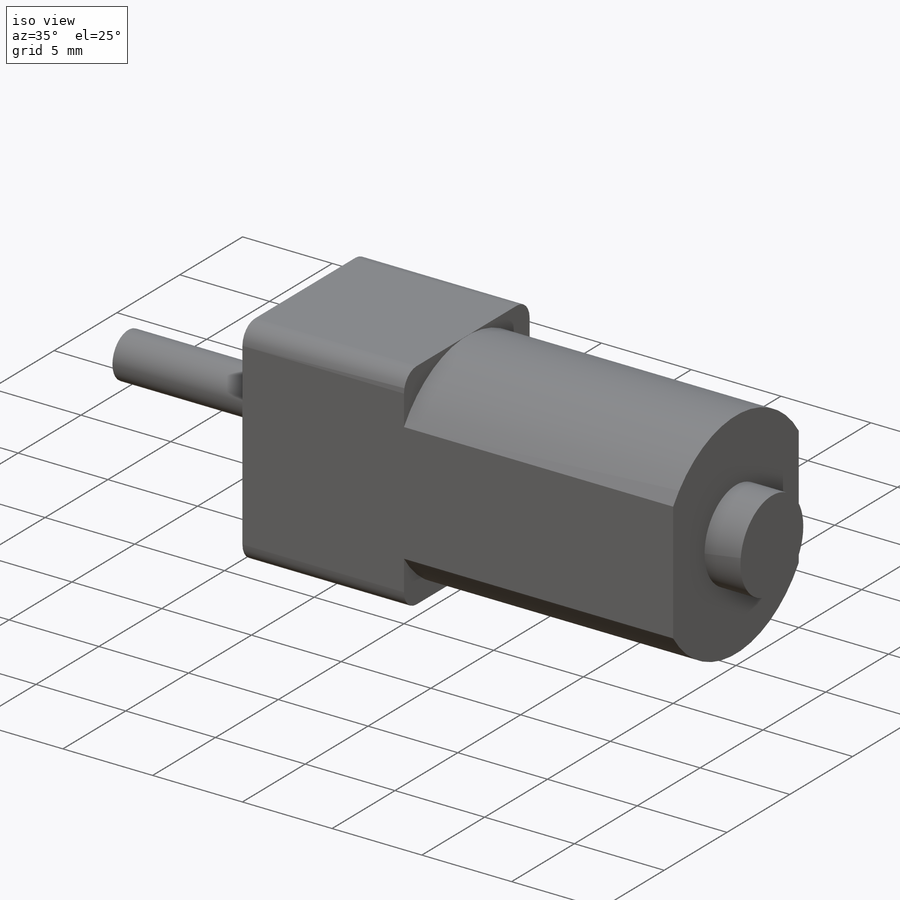
[diagram: iso view]
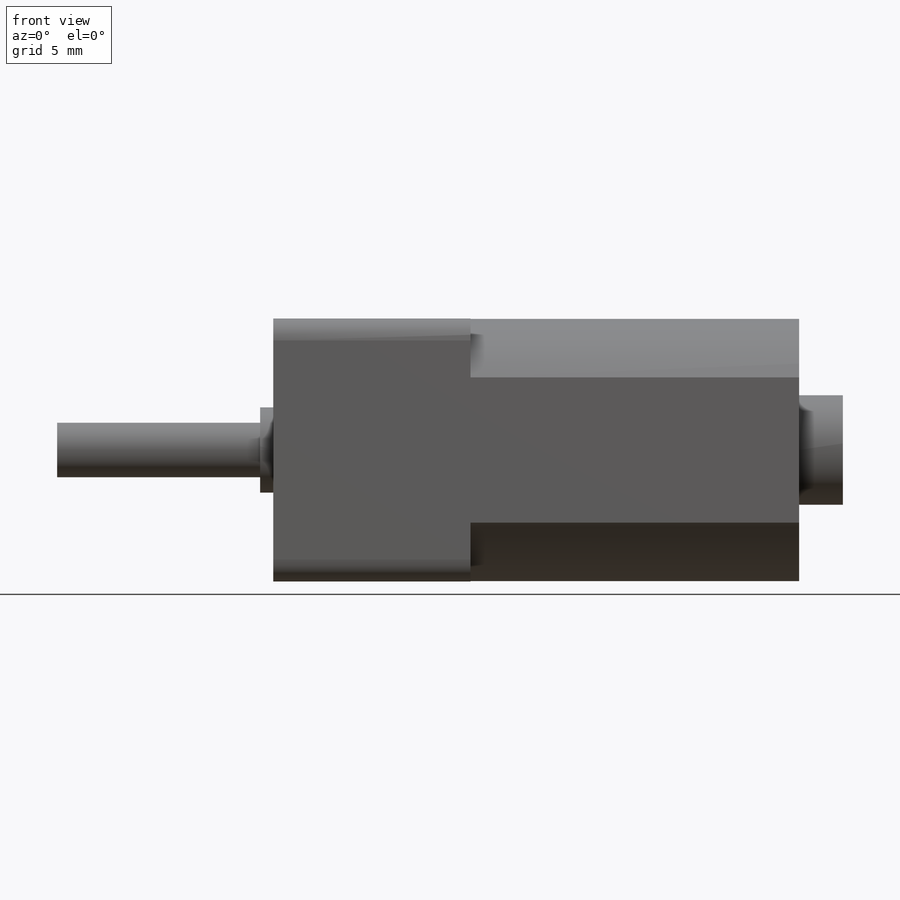
[diagram: front view]
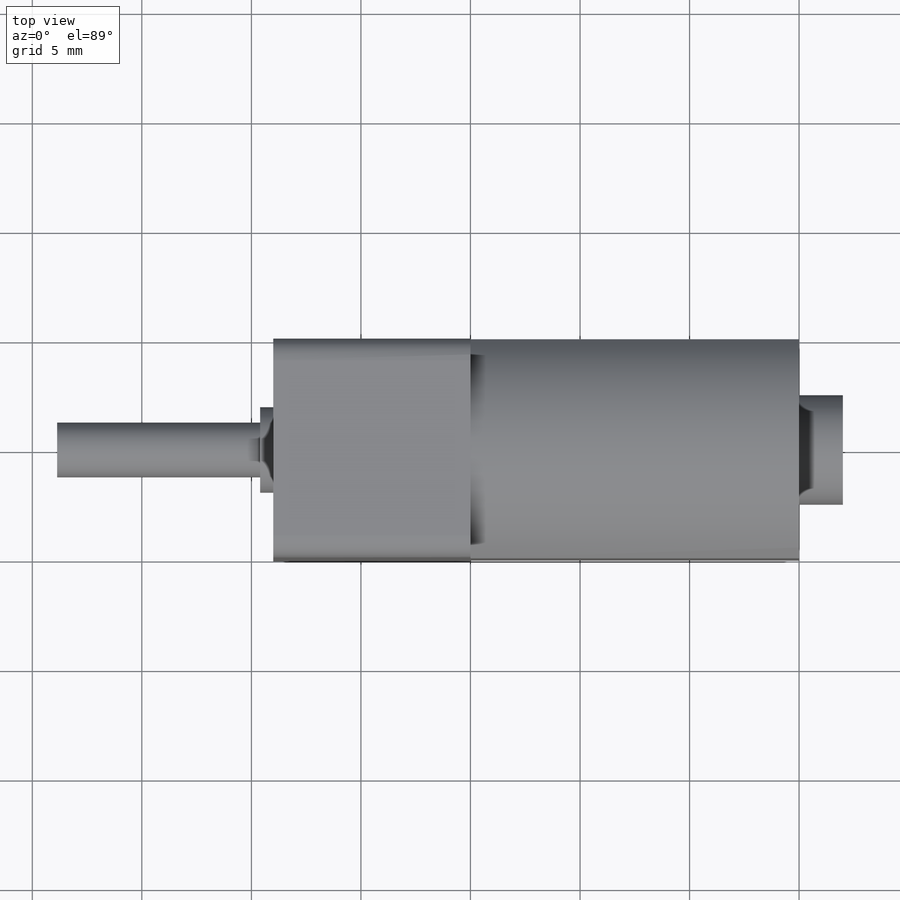
[diagram: top view]
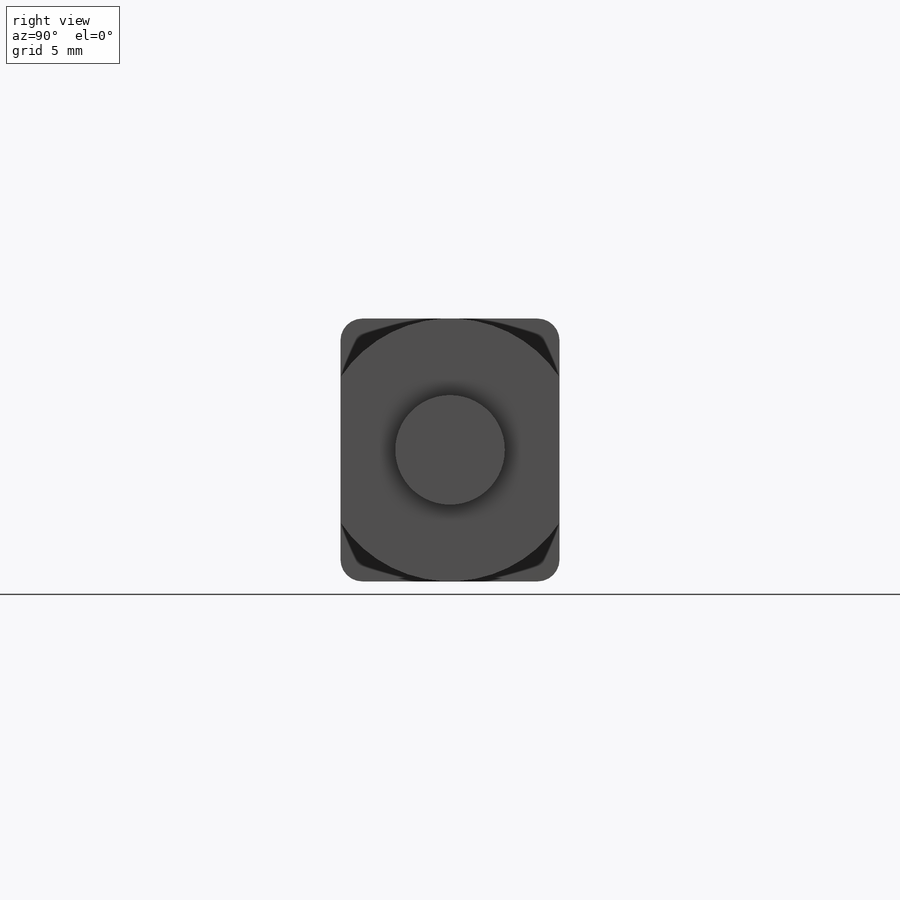
[diagram: right view]
SOLIDWORKS PART (.sldprt)
format: sldprt  version: not decoded by parser v0  size: 240,128 bytes
history: native  units: mm
features: sketch x5, extrude x5, material x1, fillet x1 (+16 scaffold rows collapsed)
feature tree (28):
  scaffold x16  (default folders/planes/origin — collapsed)
  material  "Material <not specified>"
  sketch  "Sketch1"  dims[D2=12.0mm D1=5.0mm]
  extrude  "Extrude1"  Depth=15mm
  sketch  "Sketch2"  dims[D1=10.0mm D2=12.0mm]
  extrude  "Extrude2"  Depth=9mm
  sketch  "Sketch3"  dims[D1=5.0mm]
  extrude  "Extrude3"  Depth=2mm
  sketch  "Sketch4"  dims[D1=3.9mm]
  extrude  "Extrude4"  Depth=0.6mm
  sketch  "Sketch5"  dims[D1=2.5mm]
  extrude  "Extrude5"  Depth=9.27mm
  fillet  "Fillet1"  Radius=1mm
decode coverage: 11 of 11 modeling features carry decoded parameters
note: suppression state not decoded; provenance and decode notes live in map.json
